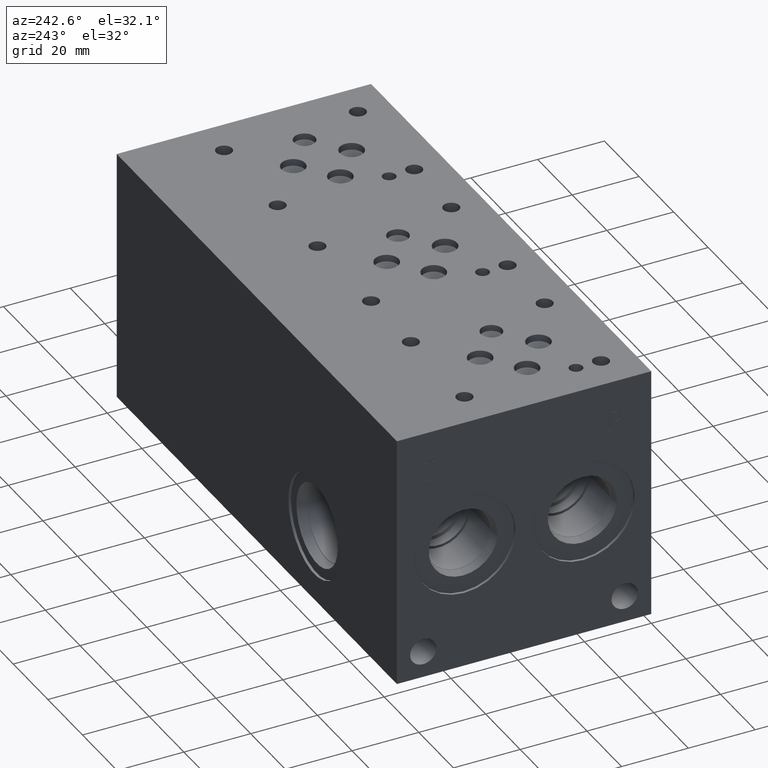
[diagram: clean part render]
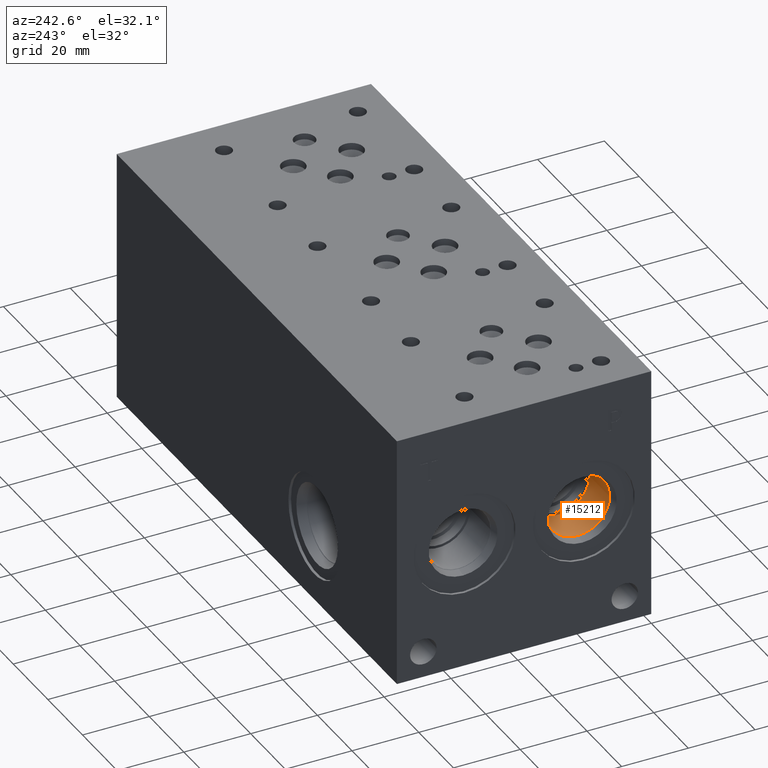
[diagram: same view with one face highlighted and labeled with its STEP entity id]
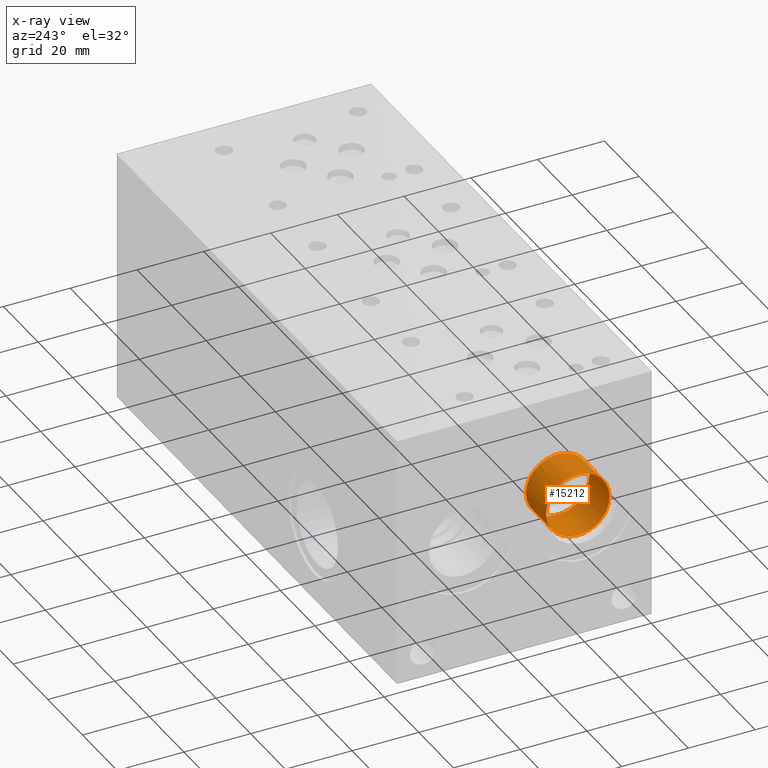
[diagram: x-ray of the same camera — body ghosted, the highlighted face saturated]
A machine part, auxiliary view. The second image highlights one B-rep face of the part: STEP entity #15212.
The next image is the same camera in x-ray: the body ghosted, the highlighted face saturated — about 0% of this face is hidden behind the body in this view.
In plain terms, the highlighted cylindrical surface (bore or boss wall) has radius 9.525 mm, axis along (-1, 0, 0).
Its self-contained STEP definition (entity closure, byte-faithful):
#198=CYLINDRICAL_SURFACE('',#16216,9.525);
#585=CIRCLE('',#16186,9.525);
#586=CIRCLE('',#16187,9.525);
#602=CIRCLE('',#16213,9.525);
#603=CIRCLE('',#16214,9.525);
#2125=FACE_OUTER_BOUND('',#3018,.T.);
#3018=EDGE_LOOP('',(#13374,#13375,#13376,#13377,#13378,#13379));
#4359=LINE('',#26496,#5666);
#5666=VECTOR('',#19494,9.525);
#7112=VERTEX_POINT('',#26434);
#7113=VERTEX_POINT('',#26436);
#7131=VERTEX_POINT('',#26489);
#7132=VERTEX_POINT('',#26490);
#9218=EDGE_CURVE('',#7113,#7112,#585,.T.);
#9219=EDGE_CURVE('',#7112,#7113,#586,.T.);
#9243=EDGE_CURVE('',#7131,#7132,#602,.T.);
#9244=EDGE_CURVE('',#7132,#7131,#603,.T.);
#9246=EDGE_CURVE('',#7113,#7132,#4359,.T.);
#13374=ORIENTED_EDGE('',*,*,#9218,.T.);
#13375=ORIENTED_EDGE('',*,*,#9219,.T.);
#13376=ORIENTED_EDGE('',*,*,#9246,.T.);
#13377=ORIENTED_EDGE('',*,*,#9243,.F.);
#13378=ORIENTED_EDGE('',*,*,#9244,.F.);
#13379=ORIENTED_EDGE('',*,*,#9246,.F.);
#15212=ADVANCED_FACE('',(#2125),#198,.F.);
#16186=AXIS2_PLACEMENT_3D('',#26437,#19424,#19425);
#16187=AXIS2_PLACEMENT_3D('',#26438,#19426,#19427);
#16213=AXIS2_PLACEMENT_3D('',#26491,#19486,#19487);
#16214=AXIS2_PLACEMENT_3D('',#26492,#19488,#19489);
#16216=AXIS2_PLACEMENT_3D('',#26495,#19492,#19493);
#19424=DIRECTION('center_axis',(-1.,0.,0.));
#19425=DIRECTION('ref_axis',(0.,1.,0.));
#19426=DIRECTION('center_axis',(-1.,0.,0.));
#19427=DIRECTION('ref_axis',(0.,1.,0.));
#19486=DIRECTION('center_axis',(-1.,0.,0.));
#19487=DIRECTION('ref_axis',(0.,1.,0.));
#19488=DIRECTION('center_axis',(-1.,0.,0.));
#19489=DIRECTION('ref_axis',(0.,1.,0.));
#19492=DIRECTION('center_axis',(-1.,0.,0.));
#19493=DIRECTION('ref_axis',(0.,1.,0.));
#19494=DIRECTION('',(1.,0.,0.));
#26434=CARTESIAN_POINT('',(3.4036,20.2438,28.575));
#26436=CARTESIAN_POINT('',(3.4036,10.7188,38.1));
#26437=CARTESIAN_POINT('Origin',(3.4036,20.2438,38.1));
#26438=CARTESIAN_POINT('Origin',(3.4036,20.2438,38.1));
#26489=CARTESIAN_POINT('',(15.0622,29.7688,38.1));
#26490=CARTESIAN_POINT('',(15.0622,10.7188,38.1));
#26491=CARTESIAN_POINT('Origin',(15.0622,20.2438,38.1));
#26492=CARTESIAN_POINT('Origin',(15.0622,20.2438,38.1));
#26495=CARTESIAN_POINT('Origin',(7.5311,20.2438,38.1));
#26496=CARTESIAN_POINT('',(7.5311,10.7188,38.1));